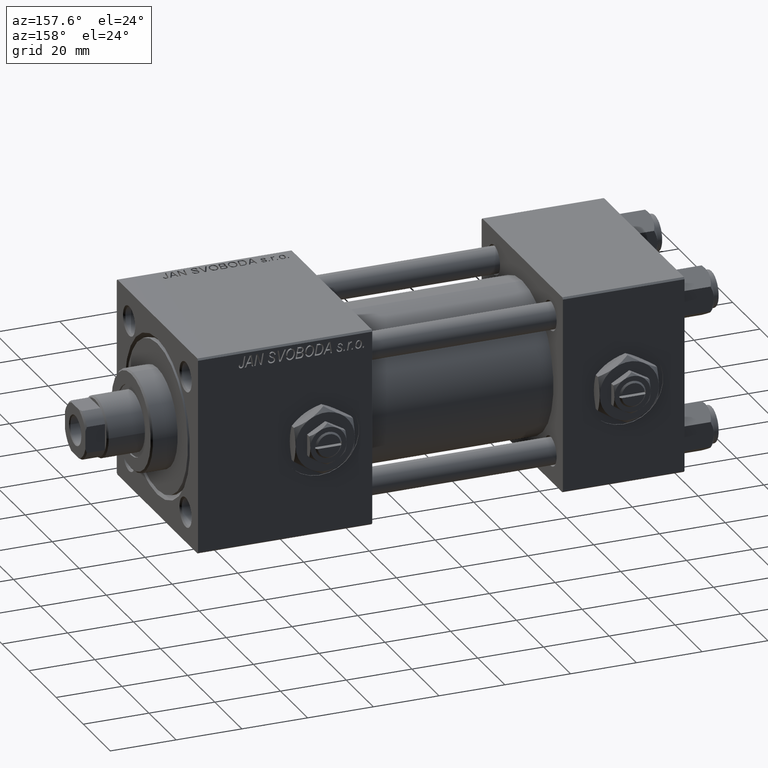
[diagram: clean part render]
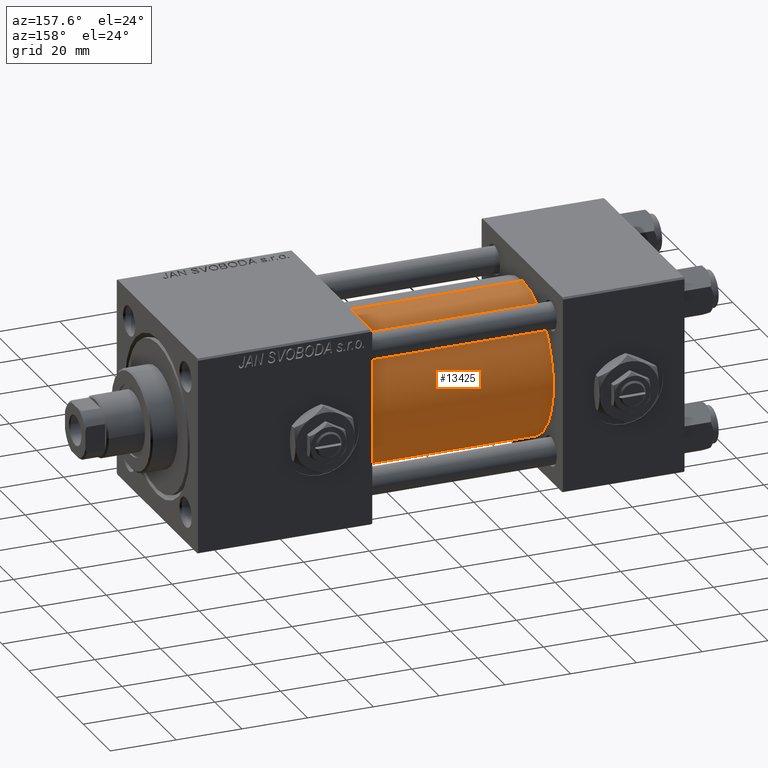
[diagram: same view with one face highlighted and labeled with its STEP entity id]
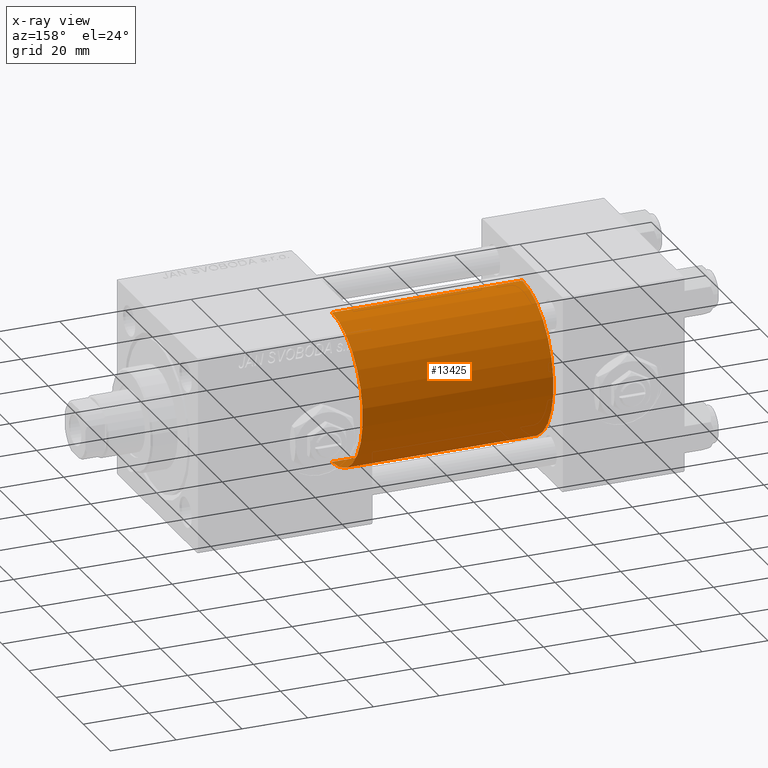
[diagram: x-ray of the same camera — body ghosted, the highlighted face saturated]
A machine part, auxiliary view. The second image highlights one B-rep face of the part: STEP entity #13425.
The next image is the same camera in x-ray: the body ghosted, the highlighted face saturated — about 1% of this face is hidden behind the body in this view.
In plain terms, the highlighted cylindrical surface (partial cylindrical patch) has radius 23 mm, axis along (-1, -0, -0).
Its self-contained STEP definition (entity closure, byte-faithful):
#1181 = FACE_OUTER_BOUND ( 'NONE', #5644, .T. ) ;
#1934 = VERTEX_POINT ( 'NONE', #47579 ) ;
#3830 = EDGE_CURVE ( 'NONE', #24892, #1934, #41549, .T. ) ;
#4893 = CARTESIAN_POINT ( 'NONE',  ( 95.00000000000000000, -2.602085213965210642E-15, 0.000000000000000000 ) ) ;
#5397 = LINE ( 'NONE', #28978, #17713 ) ;
#5644 = EDGE_LOOP ( 'NONE', ( #11597, #39095, #44120, #27891 ) ) ;
#11597 = ORIENTED_EDGE ( 'NONE', *, *, #21262, .F. ) ;
#11840 = AXIS2_PLACEMENT_3D ( 'NONE', #36703, #24555, #31521 ) ;
#12581 = CYLINDRICAL_SURFACE ( 'NONE', #29393, 23.00000000000000000 ) ;
#13101 = DIRECTION ( 'NONE',  ( -1.000000000000000000, -0.000000000000000000, -0.000000000000000000 ) ) ;
#13425 = ADVANCED_FACE ( 'NONE', ( #1181 ), #12581, .T. ) ;
#14431 = DIRECTION ( 'NONE',  ( 0.000000000000000000, 0.000000000000000000, 1.000000000000000000 ) ) ;
#17228 = CARTESIAN_POINT ( 'NONE',  ( 95.00000000000000000, -2.602085213965210642E-15, 23.00000000000000000 ) ) ;
#17713 = VECTOR ( 'NONE', #49553, 1000.000000000000000 ) ;
#18391 = DIRECTION ( 'NONE',  ( 1.000000000000000000, -0.000000000000000000, 0.000000000000000000 ) ) ;
#20677 = EDGE_CURVE ( 'NONE', #44690, #42478, #5397, .T. ) ;
#21040 = DIRECTION ( 'NONE',  ( 0.000000000000000000, 0.000000000000000000, 1.000000000000000000 ) ) ;
#21262 = EDGE_CURVE ( 'NONE', #44690, #24892, #27042, .T. ) ;
#24555 = DIRECTION ( 'NONE',  ( 1.000000000000000000, 0.000000000000000000, 0.000000000000000000 ) ) ;
#24892 = VERTEX_POINT ( 'NONE', #41769 ) ;
#27042 = CIRCLE ( 'NONE', #11840, 23.00000000000000000 ) ;
#27891 = ORIENTED_EDGE ( 'NONE', *, *, #3830, .F. ) ;
#28978 = CARTESIAN_POINT ( 'NONE',  ( 95.00000000000000000, 2.146024240737012665E-16, -23.00000000000000000 ) ) ;
#29393 = AXIS2_PLACEMENT_3D ( 'NONE', #4893, #13101, #21040 ) ;
#30770 = EDGE_CURVE ( 'NONE', #42478, #1934, #36751, .T. ) ;
#31521 = DIRECTION ( 'NONE',  ( 0.000000000000000000, 0.000000000000000000, -1.000000000000000000 ) ) ;
#33371 = DIRECTION ( 'NONE',  ( -1.000000000000000000, -0.000000000000000000, -0.000000000000000000 ) ) ;
#35812 = CARTESIAN_POINT ( 'NONE',  ( 37.00000000000000000, 2.146024240737012665E-16, -23.00000000000000000 ) ) ;
#36703 = CARTESIAN_POINT ( 'NONE',  ( 95.00000000000000000, -2.602085213965210642E-15, 0.000000000000000000 ) ) ;
#36751 = CIRCLE ( 'NONE', #40972, 23.00000000000000000 ) ;
#38491 = CARTESIAN_POINT ( 'NONE',  ( 37.00000000000000000, -2.602085213965210642E-15, 0.000000000000000000 ) ) ;
#39095 = ORIENTED_EDGE ( 'NONE', *, *, #20677, .T. ) ;
#40972 = AXIS2_PLACEMENT_3D ( 'NONE', #38491, #18391, #14431 ) ;
#41549 = LINE ( 'NONE', #17228, #44300 ) ;
#41769 = CARTESIAN_POINT ( 'NONE',  ( 95.00000000000000000, -2.602085213965210642E-15, 23.00000000000000000 ) ) ;
#42478 = VERTEX_POINT ( 'NONE', #35812 ) ;
#44120 = ORIENTED_EDGE ( 'NONE', *, *, #30770, .T. ) ;
#44300 = VECTOR ( 'NONE', #33371, 1000.000000000000000 ) ;
#44690 = VERTEX_POINT ( 'NONE', #50638 ) ;
#47579 = CARTESIAN_POINT ( 'NONE',  ( 37.00000000000000000, -2.602085213965210642E-15, 23.00000000000000000 ) ) ;
#49553 = DIRECTION ( 'NONE',  ( -1.000000000000000000, -0.000000000000000000, -0.000000000000000000 ) ) ;
#50638 = CARTESIAN_POINT ( 'NONE',  ( 95.00000000000000000, 2.146024240737012665E-16, -23.00000000000000000 ) ) ;